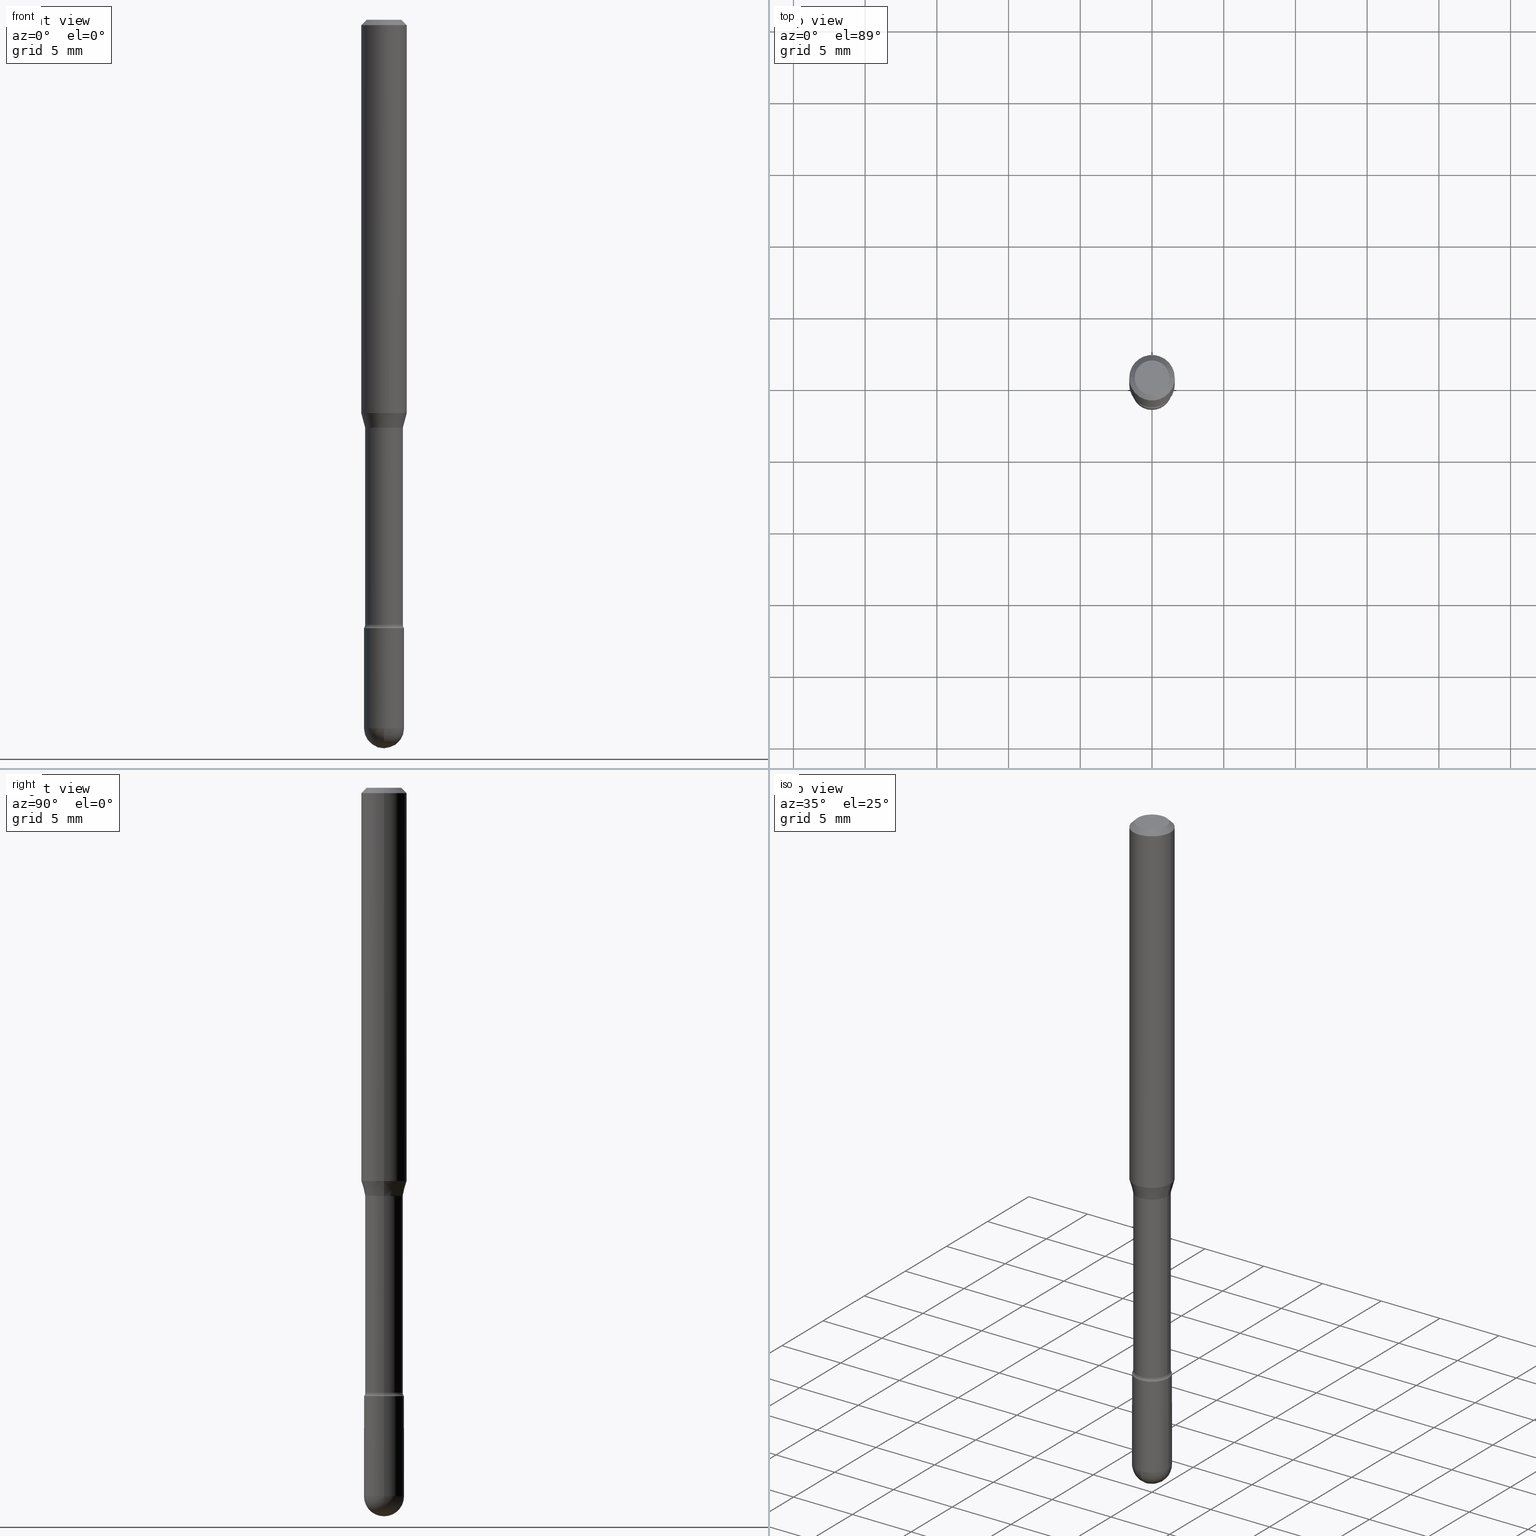
[diagram: canonical four-view strip — front | top / right | iso, engineering-drawing reading convention]
A machine part, canonical four-view strip (front | top / right | iso — engineering-drawing reading convention). The complete STEP part file that produces these views, byte-faithful:
ISO-10303-21;
HEADER;
FILE_DESCRIPTION (( 'STEP AP203' ),
    '1' );
FILE_NAME ('09347.STEP',
    '2024-04-09T22:44:51',
    ( '' ),
    ( '' ),
    'SwSTEP 2.0',
    'SolidWorks 2023',
    '' );
FILE_SCHEMA (( 'CONFIG_CONTROL_DESIGN' ));
ENDSEC;

DATA;
#1 = CARTESIAN_POINT ( 'NONE',  ( -0.06250000000000000000, 4.440892098500642925E-16, 4.780733988912429571E-16 ) ) ;
#2 = AXIS2_PLACEMENT_3D ( 'NONE', #113, #291, #23 ) ;
#3 = CIRCLE ( 'NONE', #270, 0.05169999999999999596 ) ;
#4 = CARTESIAN_POINT ( 'NONE',  ( 2.743754344068947151E-29, -3.917354033082399546E-15, -1.121974787463810630 ) ) ;
#5 = DIRECTION ( 'NONE',  ( 1.000000000000000000, -6.982962677686262766E-15, 0.000000000000000000 ) ) ;
#6 = DIRECTION ( 'NONE',  ( 1.000000000000000000, -6.982962677686266711E-15, 0.000000000000000000 ) ) ;
#7 = EDGE_LOOP ( 'NONE', ( #524, #338, #34, #530 ) ) ;
#8 = PRODUCT_RELATED_PRODUCT_CATEGORY ( 'detail', '', ( #351 ) ) ;
#9 = DIRECTION ( 'NONE',  ( -2.445468806185136597E-29, 3.491481338843145583E-15, 1.000000000000000000 ) ) ;
#10 = CARTESIAN_POINT ( 'NONE',  ( 0.06250000000000000000, -4.364351673553899931E-16, 4.780733988912490708E-16 ) ) ;
#11 = AXIS2_PLACEMENT_3D ( 'NONE', #433, #45, #515 ) ;
#12 = ADVANCED_FACE ( 'NONE', ( #293 ), #410, .T. ) ;
#13 = CARTESIAN_POINT ( 'NONE',  ( 4.060978042117791300E-29, -5.798000373443578100E-15, -1.660613307291702645 ) ) ;
#14 = ORIENTED_EDGE ( 'NONE', *, *, #248, .T. ) ;
#15 = DIRECTION ( 'NONE',  ( -2.445468806185136597E-29, 3.491481338843145583E-15, 1.000000000000000000 ) ) ;
#16 = PERSON_AND_ORGANIZATION ( #215, #225 ) ;
#17 = EDGE_CURVE ( 'NONE', #407, #453, #320, .T. ) ;
#18 = DIRECTION ( 'NONE',  ( 1.000000000000000000, -6.982962677686266711E-15, 4.852736867747366207E-29 ) ) ;
#19 = AXIS2_PLACEMENT_3D ( 'NONE', #278, #449, #66 ) ;
#20 = AXIS2_PLACEMENT_3D ( 'NONE', #333, #510, #238 ) ;
#21 = CC_DESIGN_APPROVAL ( #488, ( #467 ) ) ;
#22 = DATE_TIME_ROLE ( 'classification_date' ) ;
#23 = DIRECTION ( 'NONE',  ( 1.000000000000000000, -6.982962677686262766E-15, 0.000000000000000000 ) ) ;
#24 = ORIENTED_EDGE ( 'NONE', *, *, #142, .F. ) ;
#25 = APPROVAL_STATUS ( 'not_yet_approved' ) ;
#26 = CARTESIAN_POINT ( 'NONE',  ( -3.907985046680076246E-16, -0.05500000000000680733, -1.944999999999999618 ) ) ;
#27 = DIRECTION ( 'NONE',  ( -2.445468806185136597E-29, 3.491481338843145583E-15, 1.000000000000000000 ) ) ;
#28 = ADVANCED_FACE ( 'NONE', ( #120 ), #247, .T. ) ;
#29 = CALENDAR_DATE ( 2024, 9, 4 ) ;
#30 = CARTESIAN_POINT ( 'NONE',  ( -1.169113584055446105E-44, 1.669184350826100908E-30, 4.780733988912460139E-16 ) ) ;
#31 = CARTESIAN_POINT ( 'NONE',  ( 4.756436828030090255E-29, -6.790931204049917095E-15, -1.944999999999999840 ) ) ;
#32 = CONICAL_SURFACE ( 'NONE', #362, 0.06250000000000000000, 0.7853981633974483900 ) ;
#33 = PERSON_AND_ORGANIZATION_ROLE ( 'design_owner' ) ;
#34 = ORIENTED_EDGE ( 'NONE', *, *, #91, .T. ) ;
#35 = CIRCLE ( 'NONE', #353, 0.06250000000000000000 ) ;
#36 = DIRECTION ( 'NONE',  ( 1.000000000000000000, -6.982962677686265922E-15, 4.876176775795935793E-29 ) ) ;
#37 = EDGE_LOOP ( 'NONE', ( #147, #253, #558, #152 ) ) ;
#38 = VERTEX_POINT ( 'NONE', #71 ) ;
#39 = CARTESIAN_POINT ( 'NONE',  ( 4.756436828030090255E-29, -6.790931204049917095E-15, -1.944999999999999840 ) ) ;
#40 = ORIENTED_EDGE ( 'NONE', *, *, #142, .T. ) ;
#41 = DIRECTION ( 'NONE',  ( 1.000000000000000000, -6.982962677686266711E-15, 4.876176775795935793E-29 ) ) ;
#42 = EDGE_CURVE ( 'NONE', #483, #402, #352, .T. ) ;
#43 = AXIS2_PLACEMENT_3D ( 'NONE', #264, #172, #518 ) ;
#44 = DIRECTION ( 'NONE',  ( -2.445468806185136597E-29, 3.491481338843145583E-15, 1.000000000000000000 ) ) ;
#45 = DIRECTION ( 'NONE',  ( -2.445468806185136597E-29, 3.491481338843145583E-15, 1.000000000000000000 ) ) ;
#46 = EDGE_CURVE ( 'NONE', #453, #38, #356, .T. ) ;
#47 = CARTESIAN_POINT ( 'NONE',  ( 2.734260335550274968E-29, -3.903799105090709748E-15, -1.118092501787272930 ) ) ;
#48 = VECTOR ( 'NONE', #396, 39.37007874015748143 ) ;
#49 = TOROIDAL_SURFACE ( 'NONE', #87, 0.06669999999999999540, 0.01499999999999998904 ) ;
#50 = ORIENTED_EDGE ( 'NONE', *, *, #345, .T. ) ;
#51 = DIRECTION ( 'NONE',  ( 2.438088387897960049E-29, -3.491481338843145188E-15, -1.000000000000000000 ) ) ;
#52 = ORIENTED_EDGE ( 'NONE', *, *, #403, .F. ) ;
#53 = ORIENTED_EDGE ( 'NONE', *, *, #46, .F. ) ;
#54 = DIRECTION ( 'NONE',  ( 1.000000000000000000, -6.982962677686266711E-15, 4.883557194083113462E-29 ) ) ;
#55 = AXIS2_PLACEMENT_3D ( 'NONE', #47, #182, #231 ) ;
#56 = CARTESIAN_POINT ( 'NONE',  ( 4.083932906329177803E-29, -5.830773835868053056E-15, -1.669999999999999929 ) ) ;
#57 = PRODUCT_DEFINITION_SHAPE ( 'NONE', 'NONE',  #546 ) ;
#58 = ORIENTED_EDGE ( 'NONE', *, *, #198, .F. ) ;
#59 = PERSON_AND_ORGANIZATION ( #215, #225 ) ;
#60 = EDGE_CURVE ( 'NONE', #423, #94, #475, .T. ) ;
#61 = APPROVAL_ROLE ( '' ) ;
#62 = CARTESIAN_POINT ( 'NONE',  ( 2.023552857353652888E-45, -2.889097183224559242E-31, -8.274703207154537794E-17 ) ) ;
#63 = EDGE_LOOP ( 'NONE', ( #14, #273 ) ) ;
#64 = AXIS2_PLACEMENT_3D ( 'NONE', #246, #257, #330 ) ;
#65 = AXIS2_PLACEMENT_3D ( 'NONE', #85, #44, #218 ) ;
#66 = DIRECTION ( 'NONE',  ( 1.000000000000000000, -6.982962677686270655E-15, 0.000000000000000000 ) ) ;
#67 = EDGE_CURVE ( 'NONE', #38, #483, #268, .T. ) ;
#68 = ORIENTED_EDGE ( 'NONE', *, *, #167, .T. ) ;
#69 = CARTESIAN_POINT ( 'NONE',  ( 0.04749999999999999362, -4.035134999187581581E-16, -8.274703207154280181E-17 ) ) ;
#70 = CC_DESIGN_PERSON_AND_ORGANIZATION_ASSIGNMENT ( #148, #325, ( #217 ) ) ;
#71 = CARTESIAN_POINT ( 'NONE',  ( -0.05500000000000000028, -5.920054015290930810E-15, -1.944999999999999840 ) ) ;
#72 = ORIENTED_EDGE ( 'NONE', *, *, #298, .T. ) ;
#73 = PLANE ( 'NONE',  #365 ) ;
#74 = VERTEX_POINT ( 'NONE', #349 ) ;
#75 = VECTOR ( 'NONE', #124, 39.37007874015748143 ) ;
#76 = CIRCLE ( 'NONE', #537, 0.05500000000000004191 ) ;
#77 = VERTEX_POINT ( 'NONE', #343 ) ;
#78 = LOCAL_TIME ( 18, 44, 51.00000000000000000, #283 ) ;
#79 = DIRECTION ( 'NONE',  ( -2.445468806185136597E-29, 3.491481338843145583E-15, 1.000000000000000000 ) ) ;
#80 = ORIENTED_EDGE ( 'NONE', *, *, #439, .T. ) ;
#81 = EDGE_LOOP ( 'NONE', ( #335, #512, #371, #24 ) ) ;
#82 = CARTESIAN_POINT ( 'NONE',  ( -1.169113584055446105E-44, 1.669184350826100908E-30, 4.780733988912460139E-16 ) ) ;
#83 = EDGE_LOOP ( 'NONE', ( #536, #460, #144, #118 ) ) ;
#84 = EDGE_CURVE ( 'NONE', #423, #74, #262, .T. ) ;
#85 = CARTESIAN_POINT ( 'NONE',  ( 0.000000000000000000, 0.000000000000000000, 0.000000000000000000 ) ) ;
#86 = AXIS2_PLACEMENT_3D ( 'NONE', #62, #197, #294 ) ;
#87 = AXIS2_PLACEMENT_3D ( 'NONE', #390, #565, #395 ) ;
#88 = FACE_OUTER_BOUND ( 'NONE', #430, .T. ) ;
#89 = AXIS2_PLACEMENT_3D ( 'NONE', #422, #288, #236 ) ;
#90 = DIRECTION ( 'NONE',  ( -2.445468806185136597E-29, 3.491481338843145583E-15, 1.000000000000000000 ) ) ;
#91 = EDGE_CURVE ( 'NONE', #109, #77, #307, .T. ) ;
#92 = DIRECTION ( 'NONE',  ( 6.982962677686266711E-15, 1.000000000000000000, -4.966996352116838343E-15 ) ) ;
#93 = CYLINDRICAL_SURFACE ( 'NONE', #336, 0.05169999999999999596 ) ;
#94 = VERTEX_POINT ( 'NONE', #533 ) ;
#95 = CIRCLE ( 'NONE', #86, 0.04749999999999999362 ) ;
#96 = CONICAL_SURFACE ( 'NONE', #292, 0.05221111260566397433, 0.2617993877991502960 ) ;
#97 = ADVANCED_BREP_SHAPE_REPRESENTATION ( '09347', ( #140, #347, #89 ), #233 ) ;
#98 = ADVANCED_FACE ( 'NONE', ( #479 ), #32, .T. ) ;
#99 = DIRECTION ( 'NONE',  ( -1.000000000000000000, 6.982962677686265922E-15, -4.876176775795935793E-29 ) ) ;
#100 = APPLICATION_CONTEXT ( 'configuration controlled 3d designs of mechanical parts and assemblies' ) ;
#101 = DIRECTION ( 'NONE',  ( -2.445468806185136877E-29, 3.491481338843145188E-15, 1.000000000000000000 ) ) ;
#102 = CARTESIAN_POINT ( 'NONE',  ( 4.060978042117791300E-29, -5.798000373443578100E-15, -1.660613307291702645 ) ) ;
#103 = ORIENTED_EDGE ( 'NONE', *, *, #60, .T. ) ;
#104 = AXIS2_PLACEMENT_3D ( 'NONE', #56, #9, #318 ) ;
#105 = AXIS2_PLACEMENT_3D ( 'NONE', #188, #281, #6 ) ;
#106 = LOCAL_TIME ( 18, 44, 51.00000000000000000, #416 ) ;
#107 = PERSON_AND_ORGANIZATION ( #215, #225 ) ;
#108 = COORDINATED_UNIVERSAL_TIME_OFFSET ( 5, 0, .BEHIND. ) ;
#109 = VERTEX_POINT ( 'NONE', #139 ) ;
#110 = DIRECTION ( 'NONE',  ( 1.000000000000000000, -6.982962677686265922E-15, 4.883557194083112340E-29 ) ) ;
#111 = EDGE_LOOP ( 'NONE', ( #58, #331, #80, #421 ) ) ;
#112 = ADVANCED_FACE ( 'NONE', ( #282 ), #252, .F. ) ;
#113 = CARTESIAN_POINT ( 'NONE',  ( 2.640357633530869314E-29, -3.769730933401716976E-15, -1.079693851278256123 ) ) ;
#114 = EDGE_LOOP ( 'NONE', ( #560, #542, #509, #52 ) ) ;
#115 = DIRECTION ( 'NONE',  ( 1.000000000000000000, -6.982962677686275388E-15, 0.000000000000000000 ) ) ;
#116 = CARTESIAN_POINT ( 'NONE',  ( 4.756436828030090255E-29, -6.790931204049917095E-15, -1.944999999999999840 ) ) ;
#117 = CARTESIAN_POINT ( 'NONE',  ( 0.05169999999999999596, -6.159019543879958449E-15, -1.660613307291702645 ) ) ;
#118 = ORIENTED_EDGE ( 'NONE', *, *, #91, .F. ) ;
#119 = DIRECTION ( 'NONE',  ( -2.445468806185136597E-29, 3.491481338843145583E-15, 1.000000000000000000 ) ) ;
#120 = FACE_OUTER_BOUND ( 'NONE', #158, .T. ) ;
#121 = EDGE_CURVE ( 'NONE', #74, #154, #190, .T. ) ;
#122 = AXIS2_PLACEMENT_3D ( 'NONE', #123, #476, #92 ) ;
#123 = CARTESIAN_POINT ( 'NONE',  ( 4.756436828030090255E-29, -6.790931204049917095E-15, -1.944999999999999840 ) ) ;
#124 = DIRECTION ( 'NONE',  ( -2.445468806185136877E-29, 3.491481338843145188E-15, 1.000000000000000000 ) ) ;
#125 = APPROVAL ( #505, 'UNSPECIFIED' ) ;
#126 = LINE ( 'NONE', #1, #223 ) ;
#127 = CARTESIAN_POINT ( 'NONE',  ( -0.05500000000000000028, 3.907985046680551042E-16, -2.705414299640198362E-30 ) ) ;
#128 = FACE_OUTER_BOUND ( 'NONE', #81, .T. ) ;
#129 = DIRECTION ( 'NONE',  ( -1.000000000000000000, 7.105427357601027102E-15, 0.000000000000000000 ) ) ;
#130 = CIRCLE ( 'NONE', #450, 0.05221111260566397433 ) ;
#131 = DIRECTION ( 'NONE',  ( -2.445468806185136597E-29, 3.491481338843145583E-15, 1.000000000000000000 ) ) ;
#132 = CC_DESIGN_DATE_AND_TIME_ASSIGNMENT ( #249, #22, ( #467 ) ) ;
#133 = CYLINDRICAL_SURFACE ( 'NONE', #553, 0.05169999999999999596 ) ;
#134 = CARTESIAN_POINT ( 'NONE',  ( 2.734260335550274968E-29, -3.903799105090709748E-15, -1.118092501787272930 ) ) ;
#135 = FACE_OUTER_BOUND ( 'NONE', #468, .T. ) ;
#136 = ORIENTED_EDGE ( 'NONE', *, *, #67, .F. ) ;
#137 = FACE_OUTER_BOUND ( 'NONE', #545, .T. ) ;
#138 = ORIENTED_EDGE ( 'NONE', *, *, #155, .F. ) ;
#139 = CARTESIAN_POINT ( 'NONE',  ( 0.05221111260566397433, -4.268387355776536144E-15, -1.118092501787272930 ) ) ;
#140 = MANIFOLD_SOLID_BREP ( 'Body-Move/Copy2[1]', #527 ) ;
#141 =( NAMED_UNIT ( * ) SI_UNIT ( $, .STERADIAN. ) SOLID_ANGLE_UNIT ( ) );
#142 = EDGE_CURVE ( 'NONE', #109, #244, #269, .T. ) ;
#143 = DIRECTION ( 'NONE',  ( 1.000000000000000000, -6.982962677686266711E-15, 0.000000000000000000 ) ) ;
#144 = ORIENTED_EDGE ( 'NONE', *, *, #434, .F. ) ;
#145 = EDGE_CURVE ( 'NONE', #329, #211, #95, .T. ) ;
#146 = CIRCLE ( 'NONE', #465, 0.04749999999999999362 ) ;
#147 = ORIENTED_EDGE ( 'NONE', *, *, #324, .F. ) ;
#148 = PERSON_AND_ORGANIZATION ( #215, #225 ) ;
#149 = ORIENTED_EDGE ( 'NONE', *, *, #485, .F. ) ;
#150 = LINE ( 'NONE', #414, #254 ) ;
#151 = APPROVAL_DATE_TIME ( #245, #488 ) ;
#152 = ORIENTED_EDGE ( 'NONE', *, *, #439, .F. ) ;
#153 = PLANE ( 'NONE',  #64 ) ;
#154 = VERTEX_POINT ( 'NONE', #191 ) ;
#155 = EDGE_CURVE ( 'NONE', #240, #423, #562, .T. ) ;
#156 = PERSON_AND_ORGANIZATION_ROLE ( 'creator' ) ;
#157 = CARTESIAN_POINT ( 'NONE',  ( 4.060978042117791300E-29, -5.798000373443578100E-15, -1.660613307291702645 ) ) ;
#158 = EDGE_LOOP ( 'NONE', ( #548, #68, #289, #53 ) ) ;
#159 = AXIS2_PLACEMENT_3D ( 'NONE', #157, #297, #115 ) ;
#160 = CIRCLE ( 'NONE', #105, 0.06250000000000000000 ) ;
#161 = APPROVAL_DATE_TIME ( #380, #125 ) ;
#162 = ORIENTED_EDGE ( 'NONE', *, *, #214, .T. ) ;
#163 = CARTESIAN_POINT ( 'NONE',  ( 4.756436828030090255E-29, -6.790931204049917095E-15, -1.944999999999999840 ) ) ;
#164 = DIRECTION ( 'NONE',  ( 1.000000000000000000, -6.982962677686262766E-15, 0.000000000000000000 ) ) ;
#165 = CALENDAR_DATE ( 2024, 9, 4 ) ;
#166 = CARTESIAN_POINT ( 'NONE',  ( -1.169113584055446105E-44, 1.669184350826100908E-30, 4.780733988912460139E-16 ) ) ;
#167 = EDGE_CURVE ( 'NONE', #456, #299, #313, .T. ) ;
#168 = DIRECTION ( 'NONE',  ( -2.445468806185136597E-29, 3.491481338843145583E-15, 1.000000000000000000 ) ) ;
#169 = ORIENTED_EDGE ( 'NONE', *, *, #517, .F. ) ;
#170 = CARTESIAN_POINT ( 'NONE',  ( -0.06250000000000000000, -1.466962366892119806E-15, -0.01500000000000008271 ) ) ;
#171 = ADVANCED_FACE ( 'NONE', ( #493 ), #153, .T. ) ;
#172 = DIRECTION ( 'NONE',  ( 2.445468806185136597E-29, -3.491481338843145583E-15, -1.000000000000000000 ) ) ;
#173 = DIRECTION ( 'NONE',  ( -2.445468806185136877E-29, 3.491481338843145188E-15, 1.000000000000000000 ) ) ;
#174 = CC_DESIGN_PERSON_AND_ORGANIZATION_ASSIGNMENT ( #200, #156, ( #217 ) ) ;
#175 = DIRECTION ( 'NONE',  ( 1.000000000000000000, -6.982962677686267499E-15, 4.884662768193073002E-29 ) ) ;
#176 = AXIS2_PLACEMENT_3D ( 'NONE', #31, #379, #463 ) ;
#177 = CIRCLE ( 'NONE', #20, 0.05500000000000000028 ) ;
#178 = FACE_OUTER_BOUND ( 'NONE', #428, .T. ) ;
#179 = CC_DESIGN_SECURITY_CLASSIFICATION ( #467, ( #217 ) ) ;
#180 =( CONVERSION_BASED_UNIT ( 'INCH', #406 ) LENGTH_UNIT ( ) NAMED_UNIT ( #437 ) );
#181 = CC_DESIGN_DATE_AND_TIME_ASSIGNMENT ( #547, #189, ( #546 ) ) ;
#182 = DIRECTION ( 'NONE',  ( -2.445468806185136597E-29, 3.491481338843145583E-15, 1.000000000000000000 ) ) ;
#183 = ORIENTED_EDGE ( 'NONE', *, *, #523, .T. ) ;
#184 = AXIS2_PLACEMENT_3D ( 'NONE', #116, #27, #202 ) ;
#185 = AXIS2_PLACEMENT_3D ( 'NONE', #13, #15, #321 ) ;
#186 = DIRECTION ( 'NONE',  ( -2.445468806185136597E-29, 3.491481338843145583E-15, 1.000000000000000000 ) ) ;
#187 = ORIENTED_EDGE ( 'NONE', *, *, #477, .F. ) ;
#188 = CARTESIAN_POINT ( 'NONE',  ( 3.668203209277725232E-31, -5.237222008264747365E-17, -0.01500000000000008271 ) ) ;
#189 = DATE_TIME_ROLE ( 'creation_date' ) ;
#190 = CIRCLE ( 'NONE', #104, 0.05500000000000000028 ) ;
#191 = CARTESIAN_POINT ( 'NONE',  ( 0.05500000000000004191, -6.214836783140797252E-15, -1.669999999999999929 ) ) ;
#192 = AXIS2_PLACEMENT_3D ( 'NONE', #210, #383, #522 ) ;
#193 = ORIENTED_EDGE ( 'NONE', *, *, #324, .T. ) ;
#194 = AXIS2_PLACEMENT_3D ( 'NONE', #272, #51, #99 ) ;
#195 = APPROVAL_STATUS ( 'not_yet_approved' ) ;
#196 = ORIENTED_EDGE ( 'NONE', *, *, #434, .T. ) ;
#197 = DIRECTION ( 'NONE',  ( -2.445468806185136597E-29, 3.491481338843145583E-15, 1.000000000000000000 ) ) ;
#198 = EDGE_CURVE ( 'NONE', #211, #199, #377, .T. ) ;
#199 = VERTEX_POINT ( 'NONE', #544 ) ;
#200 = PERSON_AND_ORGANIZATION ( #215, #225 ) ;
#201 = FACE_OUTER_BOUND ( 'NONE', #204, .T. ) ;
#202 = DIRECTION ( 'NONE',  ( 1.000000000000000000, -6.982962677686262766E-15, 0.000000000000000000 ) ) ;
#203 = CARTESIAN_POINT ( 'NONE',  ( 4.756436828030090255E-29, -6.790931204049917095E-15, -1.944999999999999840 ) ) ;
#204 = EDGE_LOOP ( 'NONE', ( #455, #399 ) ) ;
#205 = VECTOR ( 'NONE', #173, 39.37007874015748143 ) ;
#206 = VECTOR ( 'NONE', #229, 39.37007874015748143 ) ;
#207 = MECHANICAL_CONTEXT ( 'NONE', #392, 'mechanical' ) ;
#208 = CARTESIAN_POINT ( 'NONE',  ( -0.05221111260566397433, -3.429229280381646610E-15, -1.118092501787272930 ) ) ;
#209 = CARTESIAN_POINT ( 'NONE',  ( 4.083932906329177803E-29, -5.830773835868053056E-15, -1.669999999999999929 ) ) ;
#210 = CARTESIAN_POINT ( 'NONE',  ( -0.06669999999999999540, -3.443422028330412853E-15, -1.121974787463810630 ) ) ;
#211 = VERTEX_POINT ( 'NONE', #69 ) ;
#212 = FACE_OUTER_BOUND ( 'NONE', #535, .T. ) ;
#213 = DIRECTION ( 'NONE',  ( -2.445468806185136597E-29, 3.491481338843145583E-15, 1.000000000000000000 ) ) ;
#214 = EDGE_CURVE ( 'NONE', #244, #94, #3, .T. ) ;
#215 = PERSON ( 'UNSPECIFIED', 'UNSPECIFIED', 'UNSPECIFIED', ('UNSPECIFIED'), ('UNSPECIFIED'), ('UNSPECIFIED') ) ;
#216 = VECTOR ( 'NONE', #440, 39.37007874015748143 ) ;
#217 = PRODUCT_DEFINITION_FORMATION_WITH_SPECIFIED_SOURCE ( 'ANY', '', #351, .NOT_KNOWN. ) ;
#218 = DIRECTION ( 'NONE',  ( 1.000000000000000000, -6.982962677686266711E-15, 4.876176775795935793E-29 ) ) ;
#219 = CARTESIAN_POINT ( 'NONE',  ( 4.756436828030090255E-29, -6.790931204049917095E-15, -1.944999999999999840 ) ) ;
#220 = FACE_OUTER_BOUND ( 'NONE', #111, .T. ) ;
#221 = DIRECTION ( 'NONE',  ( 1.000000000000000000, -6.982962677686239100E-15, 0.000000000000000000 ) ) ;
#222 = CARTESIAN_POINT ( 'NONE',  ( -0.05169999999999999596, 3.673505943879734930E-16, 4.780733988912435487E-16 ) ) ;
#223 = VECTOR ( 'NONE', #350, 39.37007874015748143 ) ;
#224 = EDGE_CURVE ( 'NONE', #456, #453, #76, .T. ) ;
#225 = ORGANIZATION ( 'UNSPECIFIED', 'UNSPECIFIED', '' ) ;
#226 = PLANE ( 'NONE',  #194 ) ;
#227 = CARTESIAN_POINT ( 'NONE',  ( 0.05169999999999999596, -3.610191704363782779E-16, 4.780733988912485777E-16 ) ) ;
#228 = DIRECTION ( 'NONE',  ( -1.000000000000000000, 6.982962677686266711E-15, 0.000000000000000000 ) ) ;
#229 = DIRECTION ( 'NONE',  ( -2.445468806185136877E-29, 3.491481338843145188E-15, 1.000000000000000000 ) ) ;
#230 = ORIENTED_EDGE ( 'NONE', *, *, #214, .F. ) ;
#231 = DIRECTION ( 'NONE',  ( 1.000000000000000000, -6.982962677686266711E-15, 0.000000000000000000 ) ) ;
#232 = AXIS2_PLACEMENT_3D ( 'NONE', #4, #186, #360 ) ;
#233 =( GEOMETRIC_REPRESENTATION_CONTEXT ( 3 ) GLOBAL_UNCERTAINTY_ASSIGNED_CONTEXT ( ( #481 ) ) GLOBAL_UNIT_ASSIGNED_CONTEXT ( ( #180, #315, #141 ) ) REPRESENTATION_CONTEXT ( 'NONE', 'WORKASPACE' ) );
#234 = CC_DESIGN_PERSON_AND_ORGANIZATION_ASSIGNMENT ( #59, #332, ( #467 ) ) ;
#235 = SHAPE_DEFINITION_REPRESENTATION ( #57, #97 ) ;
#236 = DIRECTION ( 'NONE',  ( 1.000000000000000000, 0.000000000000000000, 0.000000000000000000 ) ) ;
#237 = EDGE_CURVE ( 'NONE', #322, #276, #150, .T. ) ;
#238 = DIRECTION ( 'NONE',  ( 1.000000000000000000, -6.982962677686262766E-15, 0.000000000000000000 ) ) ;
#239 = AXIS2_PLACEMENT_3D ( 'NONE', #306, #472, #221 ) ;
#240 = VERTEX_POINT ( 'NONE', #117 ) ;
#241 = APPLICATION_PROTOCOL_DEFINITION ( 'international standard', 'config_control_design', 1994, #100 ) ;
#242 = DIRECTION ( 'NONE',  ( 1.000000000000000000, -6.982962677686266711E-15, 4.852736867747366207E-29 ) ) ;
#243 = ADVANCED_FACE ( 'NONE', ( #461 ), #326, .T. ) ;
#244 = VERTEX_POINT ( 'NONE', #454 ) ;
#245 = DATE_AND_TIME ( #285, #78 ) ;
#246 = CARTESIAN_POINT ( 'NONE',  ( 4.083932906329177803E-29, -5.830773835868053056E-15, -1.669999999999999929 ) ) ;
#247 = SPHERICAL_SURFACE ( 'NONE', #176, 0.05500000000000004191 ) ;
#248 = EDGE_CURVE ( 'NONE', #402, #483, #177, .T. ) ;
#249 = DATE_AND_TIME ( #368, #303 ) ;
#250 = ORIENTED_EDGE ( 'NONE', *, *, #408, .F. ) ;
#251 = CARTESIAN_POINT ( 'NONE',  ( 3.840629472727855124E-16, 0.05499999999999417161, -1.670000000000000151 ) ) ;
#252 = TOROIDAL_SURFACE ( 'NONE', #443, 0.06670000000000005091, 0.01500000000000005322 ) ;
#253 = ORIENTED_EDGE ( 'NONE', *, *, #198, .T. ) ;
#254 = VECTOR ( 'NONE', #373, 39.37007874015748143 ) ;
#255 = CIRCLE ( 'NONE', #425, 0.05169999999999999596 ) ;
#256 = ORIENTED_EDGE ( 'NONE', *, *, #145, .T. ) ;
#257 = DIRECTION ( 'NONE',  ( -2.438088387897960049E-29, 3.491481338843145188E-15, 1.000000000000000000 ) ) ;
#258 = ORIENTED_EDGE ( 'NONE', *, *, #517, .T. ) ;
#259 = CARTESIAN_POINT ( 'NONE',  ( 0.05500000000000000028, -6.214836783140797252E-15, -1.669999999999999929 ) ) ;
#260 = CARTESIAN_POINT ( 'NONE',  ( 4.083932906329177803E-29, -5.830773835868053056E-15, -1.669999999999999929 ) ) ;
#261 = EDGE_CURVE ( 'NONE', #38, #299, #397, .T. ) ;
#262 = CIRCLE ( 'NONE', #521, 0.01500000000000006189 ) ;
#263 = AXIS2_PLACEMENT_3D ( 'NONE', #30, #286, #18 ) ;
#264 = CARTESIAN_POINT ( 'NONE',  ( 3.668203209277725232E-31, -5.237222008264747365E-17, -0.01500000000000008271 ) ) ;
#265 = CARTESIAN_POINT ( 'NONE',  ( -0.06250000000000000000, 3.840629472727441958E-16, -0.01500000000000008271 ) ) ;
#266 = CARTESIAN_POINT ( 'NONE',  ( -0.06670000000000005091, -5.324068368691591408E-15, -1.660613307291702645 ) ) ;
#267 = DIRECTION ( 'NONE',  ( -2.445468806185136877E-29, 3.491481338843145188E-15, 1.000000000000000000 ) ) ;
#268 = LINE ( 'NONE', #127, #205 ) ;
#269 = CIRCLE ( 'NONE', #19, 0.01499999999999999424 ) ;
#270 = AXIS2_PLACEMENT_3D ( 'NONE', #503, #498, #541 ) ;
#271 = APPROVAL_PERSON_ORGANIZATION ( #556, #279, #61 ) ;
#272 = CARTESIAN_POINT ( 'NONE',  ( 3.316907271900976096E-16, 0.04749999999999999362, 3.181781981480094004E-17 ) ) ;
#273 = ORIENTED_EDGE ( 'NONE', *, *, #42, .T. ) ;
#274 = CARTESIAN_POINT ( 'NONE',  ( 3.668203209277725232E-31, -5.237222008264747365E-17, -0.01500000000000008271 ) ) ;
#275 = EDGE_CURVE ( 'NONE', #276, #77, #357, .T. ) ;
#276 = VERTEX_POINT ( 'NONE', #507 ) ;
#277 = CARTESIAN_POINT ( 'NONE',  ( 2.743754344068947711E-29, -3.917354033082399546E-15, -1.121974787463810630 ) ) ;
#278 = CARTESIAN_POINT ( 'NONE',  ( 0.06669999999999999540, -4.383117643684073264E-15, -1.121974787463810630 ) ) ;
#279 = APPROVAL ( #25, 'UNSPECIFIED' ) ;
#280 = ORIENTED_EDGE ( 'NONE', *, *, #67, .T. ) ;
#281 = DIRECTION ( 'NONE',  ( -2.445468806185136597E-29, 3.491481338843145583E-15, 1.000000000000000000 ) ) ;
#282 = FACE_OUTER_BOUND ( 'NONE', #506, .T. ) ;
#283 = COORDINATED_UNIVERSAL_TIME_OFFSET ( 5, 0, .BEHIND. ) ;
#284 = ORIENTED_EDGE ( 'NONE', *, *, #500, .F. ) ;
#285 = CALENDAR_DATE ( 2024, 9, 4 ) ;
#286 = DIRECTION ( 'NONE',  ( -2.445468806185136597E-29, 3.491481338843145583E-15, 1.000000000000000000 ) ) ;
#287 = ORIENTED_EDGE ( 'NONE', *, *, #261, .T. ) ;
#288 = DIRECTION ( 'NONE',  ( 0.000000000000000000, 0.000000000000000000, 1.000000000000000000 ) ) ;
#289 = ORIENTED_EDGE ( 'NONE', *, *, #261, .F. ) ;
#290 = AXIS2_PLACEMENT_3D ( 'NONE', #209, #555, #164 ) ;
#291 = DIRECTION ( 'NONE',  ( -2.445468806185136597E-29, 3.491481338843145583E-15, 1.000000000000000000 ) ) ;
#292 = AXIS2_PLACEMENT_3D ( 'NONE', #386, #429, #470 ) ;
#293 = FACE_OUTER_BOUND ( 'NONE', #83, .T. ) ;
#294 = DIRECTION ( 'NONE',  ( 1.000000000000000000, -6.982962677686267499E-15, 4.884662768193073002E-29 ) ) ;
#295 = ADVANCED_FACE ( 'NONE', ( #459 ), #370, .T. ) ;
#296 = ORIENTED_EDGE ( 'NONE', *, *, #224, .T. ) ;
#297 = DIRECTION ( 'NONE',  ( -2.445468806185136597E-29, 3.491481338843145583E-15, 1.000000000000000000 ) ) ;
#298 = EDGE_CURVE ( 'NONE', #423, #240, #255, .T. ) ;
#299 = VERTEX_POINT ( 'NONE', #26 ) ;
#300 = CARTESIAN_POINT ( 'NONE',  ( 4.756436828030090255E-29, -6.790931204049917095E-15, -1.944999999999999840 ) ) ;
#301 = AXIS2_PLACEMENT_3D ( 'NONE', #219, #213, #5 ) ;
#302 = ORIENTED_EDGE ( 'NONE', *, *, #298, .F. ) ;
#303 = LOCAL_TIME ( 18, 44, 51.00000000000000000, #108 ) ;
#304 = FACE_OUTER_BOUND ( 'NONE', #561, .T. ) ;
#305 = DIRECTION ( 'NONE',  ( -2.445468806185136597E-29, 3.491481338843145583E-15, 1.000000000000000000 ) ) ;
#306 = CARTESIAN_POINT ( 'NONE',  ( 0.06670000000000005091, -6.263763984045252607E-15, -1.660613307291702645 ) ) ;
#307 = LINE ( 'NONE', #441, #48 ) ;
#308 = CIRCLE ( 'NONE', #55, 0.05221111260566397433 ) ;
#309 = DIRECTION ( 'NONE',  ( 1.000000000000000000, -6.982962677686262766E-15, 0.000000000000000000 ) ) ;
#310 = DIRECTION ( 'NONE',  ( -2.445468806185136597E-29, 3.491481338843145583E-15, 1.000000000000000000 ) ) ;
#311 = ADVANCED_FACE ( 'NONE', ( #201 ), #73, .F. ) ;
#312 = LINE ( 'NONE', #227, #538 ) ;
#313 = CIRCLE ( 'NONE', #551, 0.05500000000000004191 ) ;
#314 = AXIS2_PLACEMENT_3D ( 'NONE', #348, #520, #41 ) ;
#315 =( NAMED_UNIT ( * ) PLANE_ANGLE_UNIT ( ) SI_UNIT ( $, .RADIAN. ) );
#316 = DESIGN_CONTEXT ( 'detailed design', #100, 'design' ) ;
#317 = FACE_OUTER_BOUND ( 'NONE', #426, .T. ) ;
#318 = DIRECTION ( 'NONE',  ( 1.000000000000000000, -6.982962677686262766E-15, 0.000000000000000000 ) ) ;
#319 = DIRECTION ( 'NONE',  ( 1.000000000000000000, -6.982962677686266711E-15, 4.927827573631271447E-29 ) ) ;
#320 = CIRCLE ( 'NONE', #184, 0.05500000000000000028 ) ;
#321 = DIRECTION ( 'NONE',  ( 1.000000000000000000, -6.982962677686262766E-15, 4.883557194083110659E-29 ) ) ;
#322 = VERTEX_POINT ( 'NONE', #208 ) ;
#323 = VECTOR ( 'NONE', #554, 39.37007874015748143 ) ;
#324 = EDGE_CURVE ( 'NONE', #211, #329, #146, .T. ) ;
#325 = PERSON_AND_ORGANIZATION_ROLE ( 'design_supplier' ) ;
#326 = CYLINDRICAL_SURFACE ( 'NONE', #263, 0.06250000000000000000 ) ;
#327 = CC_DESIGN_PERSON_AND_ORGANIZATION_ASSIGNMENT ( #328, #33, ( #351 ) ) ;
#328 = PERSON_AND_ORGANIZATION ( #215, #225 ) ;
#329 = VERTEX_POINT ( 'NONE', #566 ) ;
#330 = DIRECTION ( 'NONE',  ( 1.000000000000000000, -6.982962677686265922E-15, 4.876176775795935793E-29 ) ) ;
#331 = ORIENTED_EDGE ( 'NONE', *, *, #145, .F. ) ;
#332 = PERSON_AND_ORGANIZATION_ROLE ( 'classification_officer' ) ;
#333 = CARTESIAN_POINT ( 'NONE',  ( 4.083932906329177803E-29, -5.830773835868053056E-15, -1.669999999999999929 ) ) ;
#334 = AXIS2_PLACEMENT_3D ( 'NONE', #203, #337, #557 ) ;
#335 = ORIENTED_EDGE ( 'NONE', *, *, #495, .F. ) ;
#336 = AXIS2_PLACEMENT_3D ( 'NONE', #490, #484, #319 ) ;
#337 = DIRECTION ( 'NONE',  ( -2.445468806185136597E-29, 3.491481338843145583E-15, 1.000000000000000000 ) ) ;
#338 = ORIENTED_EDGE ( 'NONE', *, *, #495, .T. ) ;
#339 = CALENDAR_DATE ( 2024, 9, 4 ) ;
#340 = DIRECTION ( 'NONE',  ( 1.000000000000000000, -6.982962677686275388E-15, 0.000000000000000000 ) ) ;
#341 = ORIENTED_EDGE ( 'NONE', *, *, #248, .F. ) ;
#342 = DIRECTION ( 'NONE',  ( 1.000000000000000000, -6.982962677686262766E-15, 0.000000000000000000 ) ) ;
#343 = CARTESIAN_POINT ( 'NONE',  ( 0.06250000000000000000, -4.206166100757109434E-15, -1.079693851278256123 ) ) ;
#344 = AXIS2_PLACEMENT_3D ( 'NONE', #39, #90, #471 ) ;
#345 = EDGE_CURVE ( 'NONE', #276, #415, #126, .T. ) ;
#346 = CARTESIAN_POINT ( 'NONE',  ( -0.05169999999999999596, -5.435312555127801674E-15, -1.660613307291702645 ) ) ;
#347 = MANIFOLD_SOLID_BREP ( 'Body-Move/Copy2[2]', #387 ) ;
#348 = CARTESIAN_POINT ( 'NONE',  ( 0.000000000000000000, 0.000000000000000000, 0.000000000000000000 ) ) ;
#349 = CARTESIAN_POINT ( 'NONE',  ( -0.05500000000000004191, -5.439975331199998395E-15, -1.669999999999999929 ) ) ;
#350 = DIRECTION ( 'NONE',  ( -2.445468806185136877E-29, 3.491481338843145188E-15, 1.000000000000000000 ) ) ;
#351 = PRODUCT ( '09347', '09347', '', ( #207 ) ) ;
#352 = CIRCLE ( 'NONE', #290, 0.05500000000000000028 ) ;
#353 = AXIS2_PLACEMENT_3D ( 'NONE', #438, #131, #309 ) ;
#354 = FACE_OUTER_BOUND ( 'NONE', #7, .T. ) ;
#355 = EDGE_CURVE ( 'NONE', #299, #407, #480, .T. ) ;
#356 = CIRCLE ( 'NONE', #301, 0.05500000000000000028 ) ;
#357 = CIRCLE ( 'NONE', #2, 0.06250000000000000000 ) ;
#358 = ORIENTED_EDGE ( 'NONE', *, *, #84, .F. ) ;
#359 = CARTESIAN_POINT ( 'NONE',  ( -0.05500000000000000028, -5.920054015290930021E-15, -1.669999999999999929 ) ) ;
#360 = DIRECTION ( 'NONE',  ( 1.000000000000000000, -6.982962677686265922E-15, 0.000000000000000000 ) ) ;
#361 = ADVANCED_FACE ( 'NONE', ( #128 ), #49, .F. ) ;
#362 = AXIS2_PLACEMENT_3D ( 'NONE', #274, #531, #228 ) ;
#363 = COORDINATED_UNIVERSAL_TIME_OFFSET ( 5, 0, .BEHIND. ) ;
#364 = ORIENTED_EDGE ( 'NONE', *, *, #523, .F. ) ;
#365 = AXIS2_PLACEMENT_3D ( 'NONE', #251, #424, #36 ) ;
#366 = DIRECTION ( 'NONE',  ( -1.000000000000000000, 7.105427357601001070E-15, -4.926315508542082329E-29 ) ) ;
#367 = ADVANCED_FACE ( 'NONE', ( #178 ), #563, .T. ) ;
#368 = CALENDAR_DATE ( 2024, 9, 4 ) ;
#369 = ORIENTED_EDGE ( 'NONE', *, *, #60, .F. ) ;
#370 = CYLINDRICAL_SURFACE ( 'NONE', #489, 0.06250000000000000000 ) ;
#371 = ORIENTED_EDGE ( 'NONE', *, *, #477, .T. ) ;
#372 = DATE_AND_TIME ( #165, #436 ) ;
#373 = DIRECTION ( 'NONE',  ( -0.2588190451025215721, 5.211531920934551831E-15, 0.9659258262890679791 ) ) ;
#374 = ORIENTED_EDGE ( 'NONE', *, *, #167, .F. ) ;
#375 = EDGE_CURVE ( 'NONE', #322, #94, #444, .T. ) ;
#376 = ORIENTED_EDGE ( 'NONE', *, *, #355, .T. ) ;
#377 = LINE ( 'NONE', #466, #323 ) ;
#378 = TOROIDAL_SURFACE ( 'NONE', #501, 0.06669999999999999540, 0.01499999999999998904 ) ;
#379 = DIRECTION ( 'NONE',  ( -1.000000000000000000, 6.982962677686266711E-15, -4.883557194083112901E-29 ) ) ;
#380 = DATE_AND_TIME ( #339, #564 ) ;
#381 = CARTESIAN_POINT ( 'NONE',  ( 2.023552857353652888E-45, -2.889097183224559242E-31, -8.274703207154537794E-17 ) ) ;
#382 = EDGE_LOOP ( 'NONE', ( #302, #494, #486, #250 ) ) ;
#383 = DIRECTION ( 'NONE',  ( 7.105427357601001859E-15, 1.000000000000000000, -3.491481338843145583E-15 ) ) ;
#384 = ADVANCED_FACE ( 'NONE', ( #354 ), #96, .T. ) ;
#385 = ORIENTED_EDGE ( 'NONE', *, *, #375, .F. ) ;
#386 = CARTESIAN_POINT ( 'NONE',  ( 2.734260335550274968E-29, -3.903799105090709748E-15, -1.118092501787272930 ) ) ;
#387 = CLOSED_SHELL ( 'NONE', ( #361, #391, #445, #98, #295, #12, #384, #243, #431, #525, #311, #112, #511, #469 ) ) ;
#388 = CC_DESIGN_PERSON_AND_ORGANIZATION_ASSIGNMENT ( #492, #452, ( #546 ) ) ;
#389 = APPROVAL_PERSON_ORGANIZATION ( #16, #125, #539 ) ;
#390 = CARTESIAN_POINT ( 'NONE',  ( 2.743754344068947711E-29, -3.917354033082399546E-15, -1.121974787463810630 ) ) ;
#391 = ADVANCED_FACE ( 'NONE', ( #212 ), #133, .T. ) ;
#392 = APPLICATION_CONTEXT ( 'configuration controlled 3d designs of mechanical parts and assemblies' ) ;
#393 = CARTESIAN_POINT ( 'NONE',  ( 0.05500000000000000028, -6.694915467231730455E-15, -1.944999999999999840 ) ) ;
#394 = EDGE_CURVE ( 'NONE', #154, #74, #404, .T. ) ;
#395 = DIRECTION ( 'NONE',  ( 1.000000000000000000, -6.982962677686266711E-15, 4.883557194083113462E-29 ) ) ;
#396 = DIRECTION ( 'NONE',  ( 0.2588190451025215721, 1.565188264969619995E-15, 0.9659258262890679791 ) ) ;
#397 = CIRCLE ( 'NONE', #334, 0.05500000000000000028 ) ;
#398 = LINE ( 'NONE', #10, #206 ) ;
#399 = ORIENTED_EDGE ( 'NONE', *, *, #121, .F. ) ;
#400 = DIRECTION ( 'NONE',  ( 1.000000000000000000, -6.982962677686262766E-15, 4.883557194083110659E-29 ) ) ;
#401 = APPLICATION_PROTOCOL_DEFINITION ( 'international standard', 'config_control_design', 1994, #392 ) ;
#402 = VERTEX_POINT ( 'NONE', #259 ) ;
#403 = EDGE_CURVE ( 'NONE', #415, #199, #412, .T. ) ;
#404 = CIRCLE ( 'NONE', #514, 0.05500000000000000028 ) ;
#405 = CC_DESIGN_APPROVAL ( #125, ( #546 ) ) ;
#406 = LENGTH_MEASURE_WITH_UNIT ( LENGTH_MEASURE( 0.02539999999999999897 ), #526 );
#407 = VERTEX_POINT ( 'NONE', #393 ) ;
#408 = EDGE_CURVE ( 'NONE', #240, #154, #435, .T. ) ;
#409 = APPROVAL_DATE_TIME ( #372, #279 ) ;
#410 = CONICAL_SURFACE ( 'NONE', #513, 0.05221111260566397433, 0.2617993877991502960 ) ;
#411 = COORDINATED_UNIVERSAL_TIME_OFFSET ( 5, 0, .BEHIND. ) ;
#412 = CIRCLE ( 'NONE', #11, 0.06250000000000000000 ) ;
#413 = APPROVAL_PERSON_ORGANIZATION ( #107, #488, #543 ) ;
#414 = CARTESIAN_POINT ( 'NONE',  ( -0.05221111260566397433, -3.532816837211638465E-15, -1.118092501787272930 ) ) ;
#415 = VERTEX_POINT ( 'NONE', #170 ) ;
#416 = COORDINATED_UNIVERSAL_TIME_OFFSET ( 5, 0, .BEHIND. ) ;
#417 = DIRECTION ( 'NONE',  ( -2.445468806185136597E-29, 3.491481338843145583E-15, 1.000000000000000000 ) ) ;
#418 = ADVANCED_FACE ( 'NONE', ( #304 ), #432, .T. ) ;
#419 = CARTESIAN_POINT ( 'NONE',  ( 2.734260335550274968E-29, -3.903799105090709748E-15, -1.118092501787272930 ) ) ;
#420 = DIRECTION ( 'NONE',  ( 6.982962677686267499E-15, 1.000000000000000000, 0.000000000000000000 ) ) ;
#421 = ORIENTED_EDGE ( 'NONE', *, *, #403, .T. ) ;
#422 = CARTESIAN_POINT ( 'NONE',  ( 0.000000000000000000, 0.000000000000000000, 0.000000000000000000 ) ) ;
#423 = VERTEX_POINT ( 'NONE', #346 ) ;
#424 = DIRECTION ( 'NONE',  ( -2.438088387897960049E-29, 3.491481338843145188E-15, 1.000000000000000000 ) ) ;
#425 = AXIS2_PLACEMENT_3D ( 'NONE', #462, #417, #340 ) ;
#426 = EDGE_LOOP ( 'NONE', ( #369, #72, #183, #187 ) ) ;
#427 = ADVANCED_FACE ( 'NONE', ( #88 ), #516, .T. ) ;
#428 = EDGE_LOOP ( 'NONE', ( #374, #296, #534, #540 ) ) ;
#429 = DIRECTION ( 'NONE',  ( -2.445468806185136597E-29, 3.491481338843145583E-15, 1.000000000000000000 ) ) ;
#430 = EDGE_LOOP ( 'NONE', ( #136, #287, #376, #258, #508 ) ) ;
#431 = ADVANCED_FACE ( 'NONE', ( #220 ), #457, .T. ) ;
#432 = CYLINDRICAL_SURFACE ( 'NONE', #314, 0.05500000000000000028 ) ;
#433 = CARTESIAN_POINT ( 'NONE',  ( 3.668203209277725232E-31, -5.237222008264747365E-17, -0.01500000000000008271 ) ) ;
#434 = EDGE_CURVE ( 'NONE', #77, #276, #35, .T. ) ;
#435 = CIRCLE ( 'NONE', #239, 0.01500000000000006189 ) ;
#436 = LOCAL_TIME ( 18, 44, 51.00000000000000000, #363 ) ;
#437 = DIMENSIONAL_EXPONENTS ( 1.000000000000000000, 0.000000000000000000, 0.000000000000000000, 0.000000000000000000, 0.000000000000000000, 0.000000000000000000, 0.000000000000000000 ) ;
#438 = CARTESIAN_POINT ( 'NONE',  ( 2.640357633530869314E-29, -3.769730933401716976E-15, -1.079693851278256123 ) ) ;
#439 = EDGE_CURVE ( 'NONE', #329, #415, #474, .T. ) ;
#440 = DIRECTION ( 'NONE',  ( -0.7071067811865475727, 2.468850131082257455E-15, -0.7071067811865474617 ) ) ;
#441 = CARTESIAN_POINT ( 'NONE',  ( 0.05221111260566397433, -4.268387355776536144E-15, -1.118092501787272930 ) ) ;
#442 = CARTESIAN_POINT ( 'NONE',  ( 3.840629472727923656E-16, 0.05499999999999323486, -1.945000000000000062 ) ) ;
#443 = AXIS2_PLACEMENT_3D ( 'NONE', #102, #451, #400 ) ;
#444 = CIRCLE ( 'NONE', #192, 0.01499999999999999424 ) ;
#445 = ADVANCED_FACE ( 'NONE', ( #448 ), #528, .F. ) ;
#446 = ORIENTED_EDGE ( 'NONE', *, *, #394, .T. ) ;
#447 = ORIENTED_EDGE ( 'NONE', *, *, #17, .T. ) ;
#448 = FACE_OUTER_BOUND ( 'NONE', #382, .T. ) ;
#449 = DIRECTION ( 'NONE',  ( -6.982962677686266711E-15, -1.000000000000000000, 3.491481338843145583E-15 ) ) ;
#450 = AXIS2_PLACEMENT_3D ( 'NONE', #134, #529, #143 ) ;
#451 = DIRECTION ( 'NONE',  ( -2.445468806185136597E-29, 3.491481338843145583E-15, 1.000000000000000000 ) ) ;
#452 = PERSON_AND_ORGANIZATION_ROLE ( 'creator' ) ;
#453 = VERTEX_POINT ( 'NONE', #442 ) ;
#454 = CARTESIAN_POINT ( 'NONE',  ( 0.05169999999999999596, -4.278373203518779106E-15, -1.121974787463810630 ) ) ;
#455 = ORIENTED_EDGE ( 'NONE', *, *, #394, .F. ) ;
#456 = VERTEX_POINT ( 'NONE', #482 ) ;
#457 = CONICAL_SURFACE ( 'NONE', #43, 0.06250000000000000000, 0.7853981633974483900 ) ;
#458 = VECTOR ( 'NONE', #267, 39.37007874015748143 ) ;
#459 = FACE_OUTER_BOUND ( 'NONE', #491, .T. ) ;
#460 = ORIENTED_EDGE ( 'NONE', *, *, #237, .T. ) ;
#461 = FACE_OUTER_BOUND ( 'NONE', #114, .T. ) ;
#462 = CARTESIAN_POINT ( 'NONE',  ( 4.060978042117791300E-29, -5.798000373443578100E-15, -1.660613307291702645 ) ) ;
#463 = DIRECTION ( 'NONE',  ( 6.982962677686266711E-15, 1.000000000000000000, -4.966996352116838343E-15 ) ) ;
#464 = EDGE_CURVE ( 'NONE', #199, #415, #160, .T. ) ;
#465 = AXIS2_PLACEMENT_3D ( 'NONE', #381, #119, #175 ) ;
#466 = CARTESIAN_POINT ( 'NONE',  ( 0.06250000000000000000, -4.811533449433681963E-16, -0.01500000000000008271 ) ) ;
#467 = SECURITY_CLASSIFICATION ( '', '', #496 ) ;
#468 = EDGE_LOOP ( 'NONE', ( #256, #193 ) ) ;
#469 = ADVANCED_FACE ( 'NONE', ( #137 ), #378, .F. ) ;
#470 = DIRECTION ( 'NONE',  ( 1.000000000000000000, -6.982962677686266711E-15, 0.000000000000000000 ) ) ;
#471 = DIRECTION ( 'NONE',  ( 1.000000000000000000, -6.982962677686262766E-15, 0.000000000000000000 ) ) ;
#472 = DIRECTION ( 'NONE',  ( -6.982962677686266711E-15, -1.000000000000000000, 3.491481338843145583E-15 ) ) ;
#473 = CIRCLE ( 'NONE', #232, 0.05169999999999999596 ) ;
#474 = LINE ( 'NONE', #265, #216 ) ;
#475 = LINE ( 'NONE', #222, #75 ) ;
#476 = DIRECTION ( 'NONE',  ( -1.000000000000000000, 6.982962677686266711E-15, -4.883557194083112901E-29 ) ) ;
#477 = EDGE_CURVE ( 'NONE', #94, #244, #473, .T. ) ;
#478 = DIRECTION ( 'NONE',  ( -2.445468806185136597E-29, 3.491481338843145583E-15, 1.000000000000000000 ) ) ;
#479 = FACE_OUTER_BOUND ( 'NONE', #37, .T. ) ;
#480 = CIRCLE ( 'NONE', #344, 0.05500000000000000028 ) ;
#481 = UNCERTAINTY_MEASURE_WITH_UNIT (LENGTH_MEASURE( 1.000000000000000082E-05 ), #180, 'distance_accuracy_value', 'NONE');
#482 = CARTESIAN_POINT ( 'NONE',  ( 4.893289319665516092E-29, -6.979594898988634750E-15, -2.000000000000000000 ) ) ;
#483 = VERTEX_POINT ( 'NONE', #359 ) ;
#484 = DIRECTION ( 'NONE',  ( -2.445468806185136597E-29, 3.491481338843145583E-15, 1.000000000000000000 ) ) ;
#485 = EDGE_CURVE ( 'NONE', #109, #322, #308, .T. ) ;
#486 = ORIENTED_EDGE ( 'NONE', *, *, #121, .T. ) ;
#487 = CARTESIAN_POINT ( 'NONE',  ( 0.05500000000000000028, -3.840629472727446888E-16, 2.681897226687764826E-30 ) ) ;
#488 = APPROVAL ( #195, 'UNSPECIFIED' ) ;
#489 = AXIS2_PLACEMENT_3D ( 'NONE', #166, #79, #242 ) ;
#490 = CARTESIAN_POINT ( 'NONE',  ( -1.169113584055446105E-44, 1.669184350826100908E-30, 4.780733988912460139E-16 ) ) ;
#491 = EDGE_LOOP ( 'NONE', ( #196, #50, #499, #284 ) ) ;
#492 = PERSON_AND_ORGANIZATION ( #215, #225 ) ;
#493 = FACE_OUTER_BOUND ( 'NONE', #63, .T. ) ;
#494 = ORIENTED_EDGE ( 'NONE', *, *, #84, .T. ) ;
#495 = EDGE_CURVE ( 'NONE', #322, #109, #130, .T. ) ;
#496 = SECURITY_CLASSIFICATION_LEVEL ( 'unclassified' ) ;
#497 = ORIENTED_EDGE ( 'NONE', *, *, #408, .T. ) ;
#498 = DIRECTION ( 'NONE',  ( -2.445468806185136597E-29, 3.491481338843145583E-15, 1.000000000000000000 ) ) ;
#499 = ORIENTED_EDGE ( 'NONE', *, *, #464, .F. ) ;
#500 = EDGE_CURVE ( 'NONE', #77, #199, #398, .T. ) ;
#501 = AXIS2_PLACEMENT_3D ( 'NONE', #277, #478, #54 ) ;
#502 = CC_DESIGN_APPROVAL ( #279, ( #217 ) ) ;
#503 = CARTESIAN_POINT ( 'NONE',  ( 2.743754344068947151E-29, -3.917354033082399546E-15, -1.121974787463810630 ) ) ;
#504 = DIRECTION ( 'NONE',  ( 1.000000000000000000, -6.982962677686266711E-15, 0.000000000000000000 ) ) ;
#505 = APPROVAL_STATUS ( 'not_yet_approved' ) ;
#506 = EDGE_LOOP ( 'NONE', ( #358, #138, #497, #446 ) ) ;
#507 = CARTESIAN_POINT ( 'NONE',  ( -0.06250000000000000000, -3.325641723551655148E-15, -1.079693851278256123 ) ) ;
#508 = ORIENTED_EDGE ( 'NONE', *, *, #42, .F. ) ;
#509 = ORIENTED_EDGE ( 'NONE', *, *, #500, .T. ) ;
#510 = DIRECTION ( 'NONE',  ( -2.445468806185136597E-29, 3.491481338843145583E-15, 1.000000000000000000 ) ) ;
#511 = ADVANCED_FACE ( 'NONE', ( #317 ), #93, .T. ) ;
#512 = ORIENTED_EDGE ( 'NONE', *, *, #375, .T. ) ;
#513 = AXIS2_PLACEMENT_3D ( 'NONE', #419, #168, #504 ) ;
#514 = AXIS2_PLACEMENT_3D ( 'NONE', #260, #305, #342 ) ;
#515 = DIRECTION ( 'NONE',  ( 1.000000000000000000, -6.982962677686266711E-15, 0.000000000000000000 ) ) ;
#516 = CYLINDRICAL_SURFACE ( 'NONE', #65, 0.05500000000000000028 ) ;
#517 = EDGE_CURVE ( 'NONE', #407, #402, #532, .T. ) ;
#518 = DIRECTION ( 'NONE',  ( -1.000000000000000000, 6.982962677686266711E-15, 0.000000000000000000 ) ) ;
#519 = DIRECTION ( 'NONE',  ( 7.105427357601001859E-15, 1.000000000000000000, -3.491481338843145583E-15 ) ) ;
#520 = DIRECTION ( 'NONE',  ( -2.445468806185136597E-29, 3.491481338843145583E-15, 1.000000000000000000 ) ) ;
#521 = AXIS2_PLACEMENT_3D ( 'NONE', #266, #519, #129 ) ;
#522 = DIRECTION ( 'NONE',  ( -1.000000000000000000, 7.105427357600993970E-15, 0.000000000000000000 ) ) ;
#523 = EDGE_CURVE ( 'NONE', #240, #244, #312, .T. ) ;
#524 = ORIENTED_EDGE ( 'NONE', *, *, #237, .F. ) ;
#525 = ADVANCED_FACE ( 'NONE', ( #135 ), #226, .F. ) ;
#526 =( LENGTH_UNIT ( ) NAMED_UNIT ( * ) SI_UNIT ( $, .METRE. ) );
#527 = CLOSED_SHELL ( 'NONE', ( #418, #28, #171, #367, #427 ) ) ;
#528 = TOROIDAL_SURFACE ( 'NONE', #185, 0.06670000000000005091, 0.01500000000000005322 ) ;
#529 = DIRECTION ( 'NONE',  ( -2.445468806185136597E-29, 3.491481338843145583E-15, 1.000000000000000000 ) ) ;
#530 = ORIENTED_EDGE ( 'NONE', *, *, #275, .F. ) ;
#531 = DIRECTION ( 'NONE',  ( 2.445468806185136597E-29, -3.491481338843145583E-15, -1.000000000000000000 ) ) ;
#532 = LINE ( 'NONE', #487, #458 ) ;
#533 = CARTESIAN_POINT ( 'NONE',  ( -0.05169999999999999596, -4.490326608875016858E-15, -1.121974787463810630 ) ) ;
#534 = ORIENTED_EDGE ( 'NONE', *, *, #17, .F. ) ;
#535 = EDGE_LOOP ( 'NONE', ( #550, #103, #230, #364 ) ) ;
#536 = ORIENTED_EDGE ( 'NONE', *, *, #485, .T. ) ;
#537 = AXIS2_PLACEMENT_3D ( 'NONE', #163, #110, #420 ) ;
#538 = VECTOR ( 'NONE', #101, 39.37007874015748143 ) ;
#539 = APPROVAL_ROLE ( '' ) ;
#540 = ORIENTED_EDGE ( 'NONE', *, *, #355, .F. ) ;
#541 = DIRECTION ( 'NONE',  ( 1.000000000000000000, -6.982962677686265922E-15, 0.000000000000000000 ) ) ;
#542 = ORIENTED_EDGE ( 'NONE', *, *, #275, .T. ) ;
#543 = APPROVAL_ROLE ( '' ) ;
#544 = CARTESIAN_POINT ( 'NONE',  ( 0.06250000000000000000, -4.888073874380391431E-16, -0.01500000000000008271 ) ) ;
#545 = EDGE_LOOP ( 'NONE', ( #385, #149, #40, #162 ) ) ;
#546 = PRODUCT_DEFINITION ( 'UNKNOWN', '', #217, #316 ) ;
#547 = DATE_AND_TIME ( #29, #106 ) ;
#548 = ORIENTED_EDGE ( 'NONE', *, *, #224, .F. ) ;
#549 = DIRECTION ( 'NONE',  ( -7.105427357601001070E-15, -1.000000000000000000, 0.000000000000000000 ) ) ;
#550 = ORIENTED_EDGE ( 'NONE', *, *, #155, .T. ) ;
#551 = AXIS2_PLACEMENT_3D ( 'NONE', #300, #366, #549 ) ;
#552 = ORIENTED_EDGE ( 'NONE', *, *, #46, .T. ) ;
#553 = AXIS2_PLACEMENT_3D ( 'NONE', #82, #310, #559 ) ;
#554 = DIRECTION ( 'NONE',  ( 0.7071067811865475727, -7.319954787623256045E-15, -0.7071067811865474617 ) ) ;
#555 = DIRECTION ( 'NONE',  ( -2.445468806185136597E-29, 3.491481338843145583E-15, 1.000000000000000000 ) ) ;
#556 = PERSON_AND_ORGANIZATION ( #215, #225 ) ;
#557 = DIRECTION ( 'NONE',  ( 1.000000000000000000, -6.982962677686262766E-15, 0.000000000000000000 ) ) ;
#558 = ORIENTED_EDGE ( 'NONE', *, *, #464, .T. ) ;
#559 = DIRECTION ( 'NONE',  ( 1.000000000000000000, -6.982962677686266711E-15, 4.927827573631271447E-29 ) ) ;
#560 = ORIENTED_EDGE ( 'NONE', *, *, #345, .F. ) ;
#561 = EDGE_LOOP ( 'NONE', ( #552, #280, #341, #169, #447 ) ) ;
#562 = CIRCLE ( 'NONE', #159, 0.05169999999999999596 ) ;
#563 = SPHERICAL_SURFACE ( 'NONE', #122, 0.05500000000000004191 ) ;
#564 = LOCAL_TIME ( 18, 44, 51.00000000000000000, #411 ) ;
#565 = DIRECTION ( 'NONE',  ( -2.445468806185136597E-29, 3.491481338843145583E-15, 1.000000000000000000 ) ) ;
#566 = CARTESIAN_POINT ( 'NONE',  ( -0.04749999999999999362, 3.578768372314208041E-16, -8.274703207154778150E-17 ) ) ;
ENDSEC;
END-ISO-10303-21;
